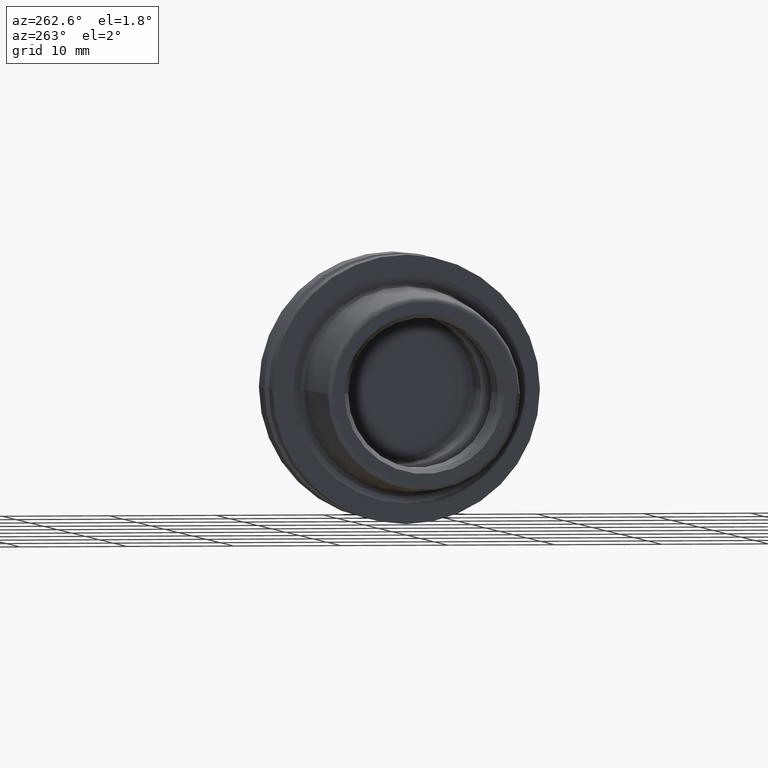
[diagram: clean part render]
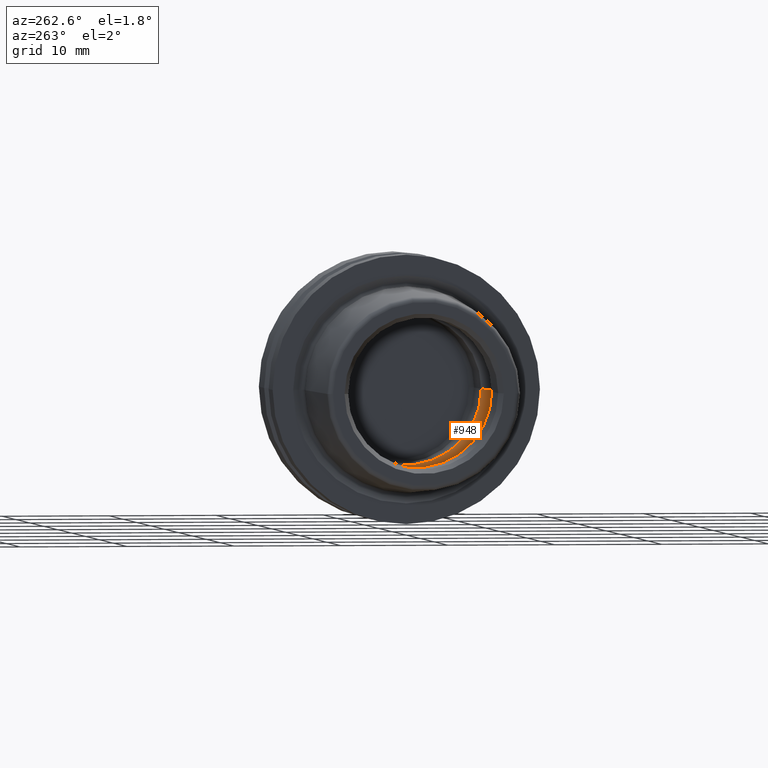
[diagram: same view with one face highlighted and labeled with its STEP entity id]
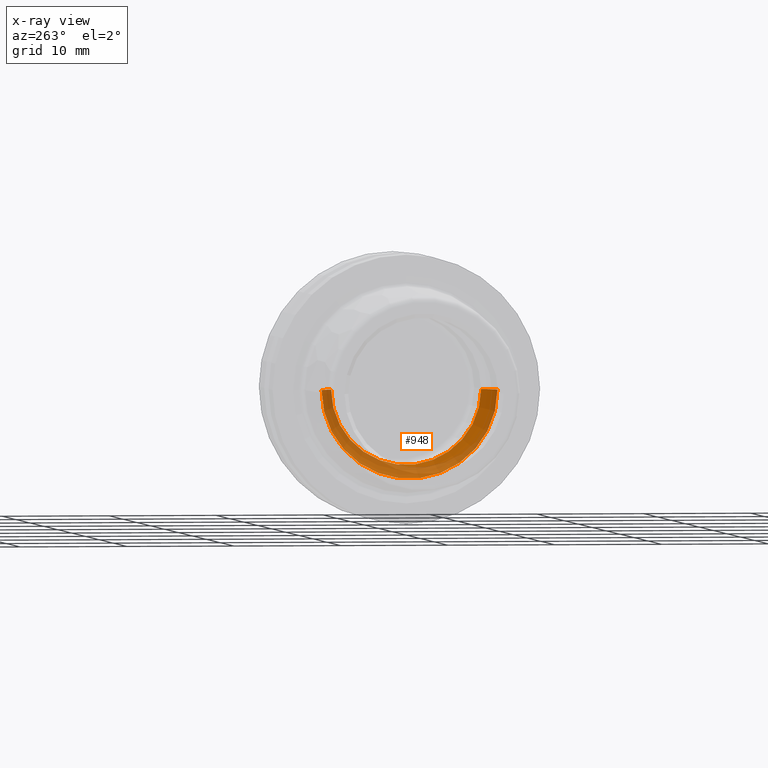
[diagram: x-ray of the same camera — body ghosted, the highlighted face saturated]
A machine part, auxiliary view. The second image highlights one B-rep face of the part: STEP entity #948.
The next image is the same camera in x-ray: the body ghosted, the highlighted face saturated — about 64% of this face is hidden behind the body in this view.
In plain terms, the highlighted toroidal blend (fillet) surface has major radius 5.2275 mm and minor (blend) radius 3 mm.
Its self-contained STEP definition (entity closure, byte-faithful):
#161=CARTESIAN_POINT('',(-2.307467549106E0,0.E0,0.E0));
#162=DIRECTION('',(-1.E0,0.E0,0.E0));
#163=DIRECTION('',(0.E0,1.E0,0.E0));
#164=AXIS2_PLACEMENT_3D('',#161,#162,#163);
#170=CARTESIAN_POINT('',(-2.307467549106E0,5.2275E0,0.E0));
#171=DIRECTION('',(0.E0,0.E0,1.E0));
#172=DIRECTION('',(8.024891830354E-1,5.966666666667E-1,0.E0));
#173=AXIS2_PLACEMENT_3D('',#170,#171,#172);
#175=CARTESIAN_POINT('',(1.E-1,0.E0,0.E0));
#176=DIRECTION('',(-1.E0,0.E0,0.E0));
#177=DIRECTION('',(0.E0,1.E0,0.E0));
#178=AXIS2_PLACEMENT_3D('',#175,#176,#177);
#180=CARTESIAN_POINT('',(-2.307467549106E0,-5.2275E0,0.E0));
#181=DIRECTION('',(0.E0,0.E0,-1.E0));
#182=DIRECTION('',(8.024891830354E-1,-5.966666666667E-1,0.E0));
#183=AXIS2_PLACEMENT_3D('',#180,#181,#182);
#640=CARTESIAN_POINT('',(1.E-1,7.0175E0,0.E0));
#641=VERTEX_POINT('',#640);
#642=CARTESIAN_POINT('',(-2.307467549106E0,8.2275E0,0.E0));
#643=VERTEX_POINT('',#642);
#652=CARTESIAN_POINT('',(1.E-1,-7.0175E0,0.E0));
#653=VERTEX_POINT('',#652);
#654=CARTESIAN_POINT('',(-2.307467549106E0,-8.2275E0,0.E0));
#655=VERTEX_POINT('',#654);
#934=CARTESIAN_POINT('',(-2.307467549106E0,0.E0,0.E0));
#935=DIRECTION('',(1.E0,0.E0,0.E0));
#936=DIRECTION('',(0.E0,-1.E0,0.E0));
#937=AXIS2_PLACEMENT_3D('',#934,#935,#936);
#938=TOROIDAL_SURFACE('',#937,5.2275E0,3.E0);
#940=ORIENTED_EDGE('',*,*,#939,.F.);
#942=ORIENTED_EDGE('',*,*,#941,.T.);
#944=ORIENTED_EDGE('',*,*,#943,.T.);
#945=ORIENTED_EDGE('',*,*,#927,.F.);
#946=EDGE_LOOP('',(#940,#942,#944,#945));
#947=FACE_OUTER_BOUND('',#946,.F.);
#948=ADVANCED_FACE('',(#947),#938,.F.);
#165=CIRCLE('',#164,8.2275E0);
#174=CIRCLE('',#173,3.E0);
#179=CIRCLE('',#178,7.0175E0);
#184=CIRCLE('',#183,3.E0);
#927=EDGE_CURVE('',#643,#655,#165,.T.);
#939=EDGE_CURVE('',#641,#643,#174,.T.);
#941=EDGE_CURVE('',#641,#653,#179,.T.);
#943=EDGE_CURVE('',#653,#655,#184,.T.);